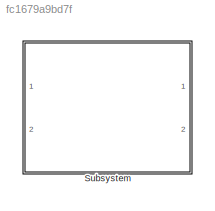
MODEL slx_fc1679a9bd7f
KIND library
CONFIG AbsTol = auto
CONFIG EnableMultiTasking = off
CONFIG FixedStep = auto
CONFIG MaxStep = auto
CONFIG MinStep = auto
CONFIG RelTol = 1e-3
CONFIG SampleTimeConstraint = Unconstrained
CONFIG Solver = VariableStepAuto
CONFIG SolverName = VariableStepAuto
CONFIG StartTime = 0.0
CONFIG StopTime = 10.0
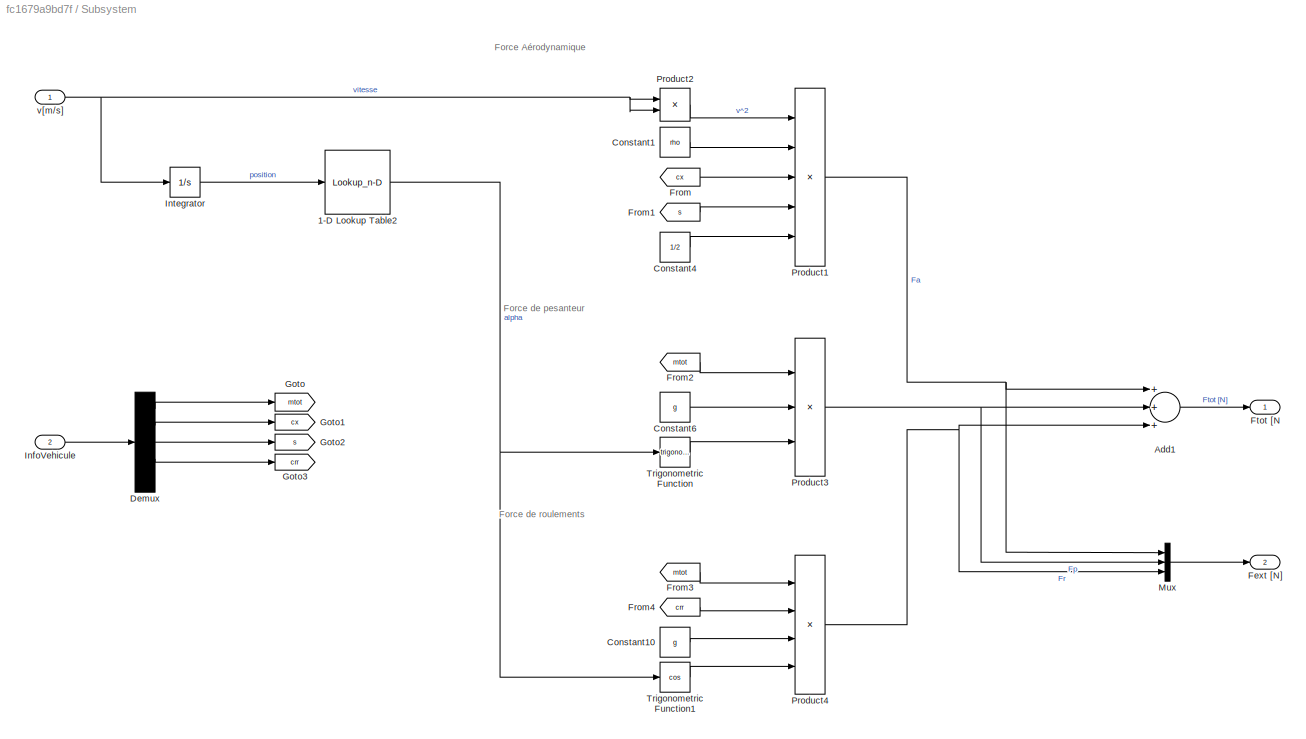
BLOCK [SubSystem] Subsystem
  Ports = [2, 2]
  RequestExecContextInheritance = off
BLOCK [Lookup_n-D] Subsystem/1-D Lookup Table2
  BreakpointsForDimension1 = c_dist_int(1:1:length(c_dist_int)-1)
  InternalRulePriority = Speed
  NumberOfTableDimensions = 1
  Ports = [1, 1]
  RndMeth = Simplest
  Table = alphaCorr_int
BLOCK [Sum] Subsystem/Add1
  InputSameDT = off
  Inputs = +++
  OutDataTypeStr = Inherit: Inherit via internal rule
  Ports = [3, 1]
  SaturateOnIntegerOverflow = off
BLOCK [Constant] Subsystem/Constant1
  Value = rho
BLOCK [Constant] Subsystem/Constant10
  Value = g
BLOCK [Constant] Subsystem/Constant4
  Value = 1/2
BLOCK [Constant] Subsystem/Constant6
  Value = g
BLOCK [Demux] Subsystem/Demux
  DisplayOption = bar
  Outputs = 5
  Ports = [1, 5]
BLOCK [Outport] Subsystem/Fext [N]
  IconDisplay = Port number
  Port = 2
BLOCK [From] Subsystem/From
  GotoTag = cx
BLOCK [From] Subsystem/From1
  GotoTag = s
BLOCK [From] Subsystem/From2
  GotoTag = mtot
BLOCK [From] Subsystem/From3
  GotoTag = mtot
BLOCK [From] Subsystem/From4
  GotoTag = crr
BLOCK [Outport] Subsystem/Ftot [N
  IconDisplay = Port number
BLOCK [Goto] Subsystem/Goto
  GotoTag = mtot
BLOCK [Goto] Subsystem/Goto1
  GotoTag = cx
BLOCK [Goto] Subsystem/Goto2
  GotoTag = s
BLOCK [Goto] Subsystem/Goto3
  GotoTag = crr
BLOCK [Inport] Subsystem/InfoVehicule
  IconDisplay = Port number
  Port = 2
BLOCK [Integrator] Subsystem/Integrator
  Ports = [1, 1]
BLOCK [Mux] Subsystem/Mux
  DisplayOption = bar
  Inputs = 3
  Ports = [3, 1]
BLOCK [Product] Subsystem/Product1
  InputSameDT = off
  Inputs = 5
  OutDataTypeStr = Inherit: Inherit via internal rule
  Ports = [5, 1]
  RndMeth = Floor
  SaturateOnIntegerOverflow = off
BLOCK [Product] Subsystem/Product2
  InputSameDT = off
  OutDataTypeStr = Inherit: Inherit via internal rule
  Ports = [2, 1]
  RndMeth = Floor
  SaturateOnIntegerOverflow = off
BLOCK [Product] Subsystem/Product3
  InputSameDT = off
  Inputs = 3
  OutDataTypeStr = Inherit: Inherit via internal rule
  Ports = [3, 1]
  RndMeth = Floor
  SaturateOnIntegerOverflow = off
BLOCK [Product] Subsystem/Product4
  InputSameDT = off
  Inputs = 4
  OutDataTypeStr = Inherit: Inherit via internal rule
  Ports = [4, 1]
  RndMeth = Floor
  SaturateOnIntegerOverflow = off
BLOCK [Trigonometry] Subsystem/Trigonometric Function
  Ports = [1, 1]
BLOCK [Trigonometry] Subsystem/Trigonometric Function1
  Operator = cos
  Ports = [1, 1]
BLOCK [Inport] Subsystem/v[m//s]
  IconDisplay = Port number
ANNOTATION Subsystem: Force Aérodynamique
ANNOTATION Subsystem: Force de pesanteur
ANNOTATION Subsystem: Force de roulements
NET Subsystem/1-D Lookup Table2:1 -> Subsystem/Trigonometric Function1:1, Subsystem/Trigonometric Function:1
LINE Subsystem/Add1:1 -> Subsystem/Ftot [N:1
LINE Subsystem/Constant10:1 -> Subsystem/Product4:3
LINE Subsystem/Constant1:1 -> Subsystem/Product1:2
LINE Subsystem/Constant4:1 -> Subsystem/Product1:5
LINE Subsystem/Constant6:1 -> Subsystem/Product3:2
LINE Subsystem/Demux:1 -> Subsystem/Goto:1
LINE Subsystem/Demux:2 -> Subsystem/Goto1:1
LINE Subsystem/Demux:3 -> Subsystem/Goto2:1
LINE Subsystem/Demux:4 -> Subsystem/Goto3:1
LINE Subsystem/From1:1 -> Subsystem/Product1:4
LINE Subsystem/From2:1 -> Subsystem/Product3:1
LINE Subsystem/From3:1 -> Subsystem/Product4:1
LINE Subsystem/From4:1 -> Subsystem/Product4:2
LINE Subsystem/From:1 -> Subsystem/Product1:3
LINE Subsystem/InfoVehicule:1 -> Subsystem/Demux:1
LINE Subsystem/Integrator:1 -> Subsystem/1-D Lookup Table2:1
LINE Subsystem/Mux:1 -> Subsystem/Fext [N]:1
NET Subsystem/Product1:1 -> Subsystem/Add1:1, Subsystem/Mux:1
LINE Subsystem/Product2:1 -> Subsystem/Product1:1
NET Subsystem/Product3:1 -> Subsystem/Add1:2, Subsystem/Mux:2
NET Subsystem/Product4:1 -> Subsystem/Add1:3, Subsystem/Mux:3
LINE Subsystem/Trigonometric Function1:1 -> Subsystem/Product4:4
LINE Subsystem/Trigonometric Function:1 -> Subsystem/Product3:3
NET Subsystem/v[m//s]:1 -> Subsystem/Integrator:1, Subsystem/Product2:1, Subsystem/Product2:2
note: NET lines group one-source signal fan-out (src -> all destinations, sorted); 1:1 wires keep LINE
